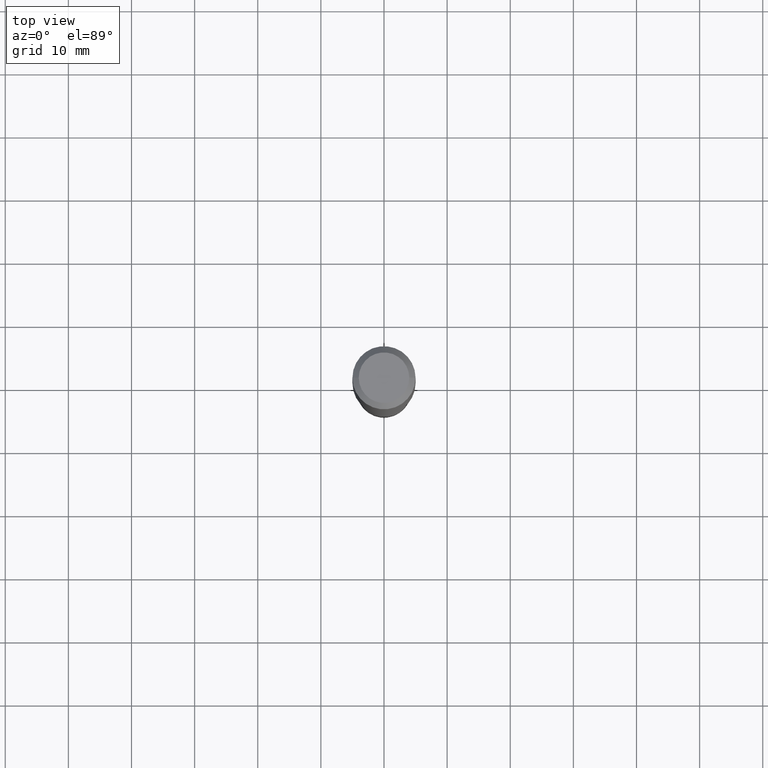
[diagram: clean part render]
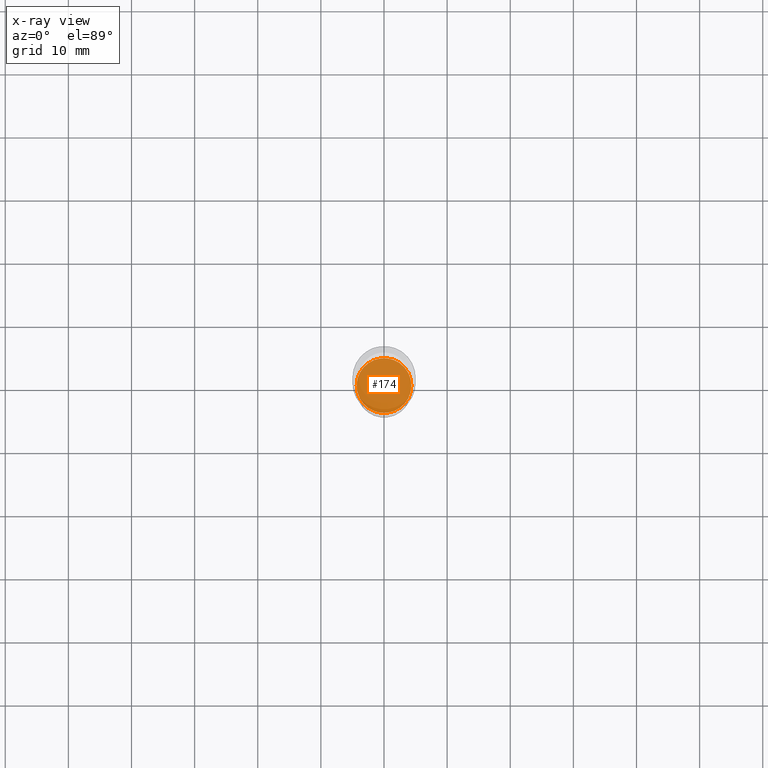
[diagram: x-ray — body ghosted, one internal face saturated and labeled with its STEP entity id]
A machine part, top view, then the same camera in x-ray: the body is ghosted and one INTERNAL B-rep face — a face not visible from any outside direction — is saturated and labeled: STEP entity #174.
In plain terms, the highlighted planar face has unit normal (-0, 0, 1).
Its self-contained STEP definition (entity closure, byte-faithful):
#9 = CARTESIAN_POINT ( 'NONE',  ( -0.1707500000000000129, -8.750881681377158273E-15, -2.854599999999999138 ) ) ;
#40 = VERTEX_POINT ( 'NONE', #163 ) ;
#43 = CARTESIAN_POINT ( 'NONE',  ( 6.980835254136088366E-29, -9.966782629861639450E-15, -2.854599999999999138 ) ) ;
#49 = AXIS2_PLACEMENT_3D ( 'NONE', #157, #305, #115 ) ;
#78 = FACE_OUTER_BOUND ( 'NONE', #138, .T. ) ;
#87 = CARTESIAN_POINT ( 'NONE',  ( 6.980835254136088366E-29, -9.966782629861639450E-15, -2.854599999999999138 ) ) ;
#115 = DIRECTION ( 'NONE',  ( 1.000000000000000000, -6.982962677686265922E-15, 4.876176775795935793E-29 ) ) ;
#138 = EDGE_LOOP ( 'NONE', ( #247, #235 ) ) ;
#153 = DIRECTION ( 'NONE',  ( 1.000000000000000000, -6.982962677686265922E-15, 0.000000000000000000 ) ) ;
#157 = CARTESIAN_POINT ( 'NONE',  ( 1.335922122911125995E-28, -8.325708785128804196E-16, -2.854599999999999582 ) ) ;
#163 = CARTESIAN_POINT ( 'NONE',  ( 0.1707500000000000129, -1.115912350707656977E-14, -2.854599999999999138 ) ) ;
#170 = EDGE_CURVE ( 'NONE', #40, #258, #288, .T. ) ;
#174 = ADVANCED_FACE ( 'NONE', ( #78 ), #345, .F. ) ;
#219 = AXIS2_PLACEMENT_3D ( 'NONE', #87, #246, #153 ) ;
#235 = ORIENTED_EDGE ( 'NONE', *, *, #245, .F. ) ;
#245 = EDGE_CURVE ( 'NONE', #258, #40, #260, .T. ) ;
#246 = DIRECTION ( 'NONE',  ( -2.445468806185136597E-29, 3.491481338843145583E-15, 1.000000000000000000 ) ) ;
#247 = ORIENTED_EDGE ( 'NONE', *, *, #170, .F. ) ;
#254 = AXIS2_PLACEMENT_3D ( 'NONE', #43, #354, #401 ) ;
#258 = VERTEX_POINT ( 'NONE', #9 ) ;
#260 = CIRCLE ( 'NONE', #254, 0.1707500000000000129 ) ;
#288 = CIRCLE ( 'NONE', #219, 0.1707500000000000129 ) ;
#305 = DIRECTION ( 'NONE',  ( -2.438088387897960049E-29, 3.491481338843145188E-15, 1.000000000000000000 ) ) ;
#345 = PLANE ( 'NONE',  #49 ) ;
#354 = DIRECTION ( 'NONE',  ( -2.445468806185136597E-29, 3.491481338843145583E-15, 1.000000000000000000 ) ) ;
#401 = DIRECTION ( 'NONE',  ( 1.000000000000000000, -6.982962677686265922E-15, 0.000000000000000000 ) ) ;